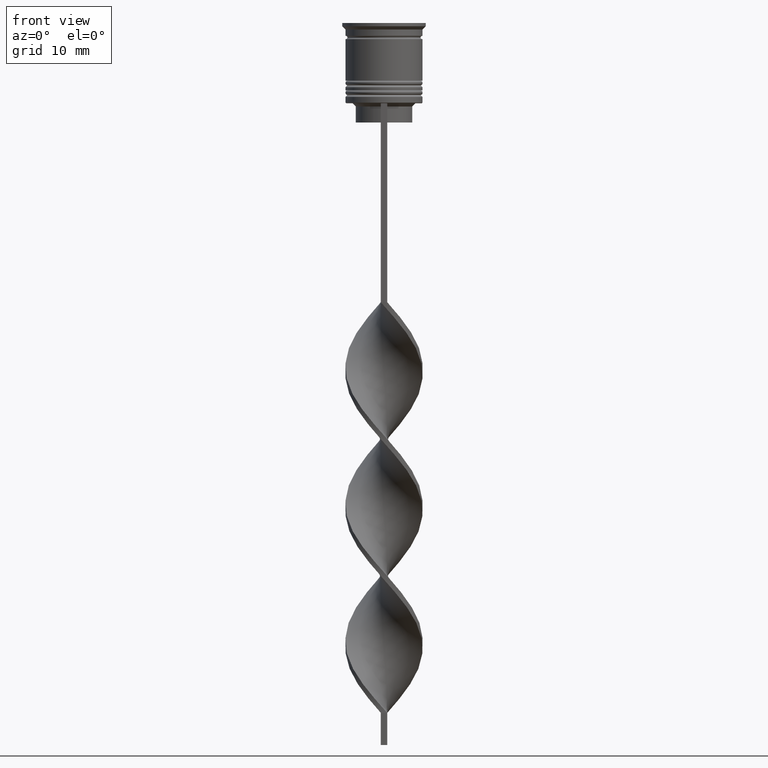
[diagram: clean part render]
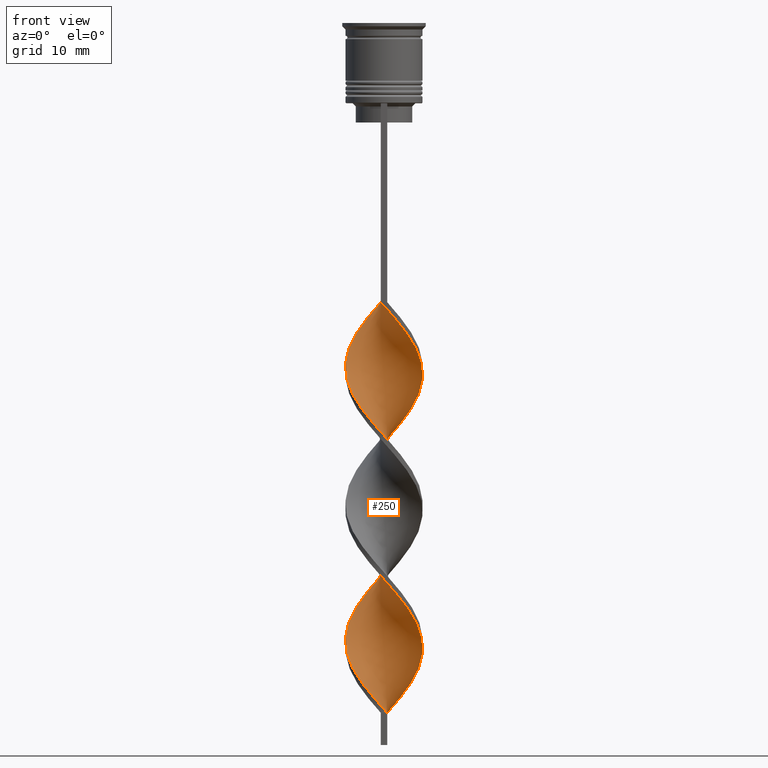
[diagram: same view with one face highlighted and labeled with its STEP entity id]
A machine part, front view. The second image highlights one B-rep face of the part: STEP entity #250.
In plain terms, the highlighted face is a freeform B-spline surface patch.
Its self-contained STEP definition (entity closure, byte-faithful):
#1 = CARTESIAN_POINT ( 'NONE',  ( -1.228531899333566990, -5.939289008388869640, -85.34615384615383959 ) ) ;
#21 = CARTESIAN_POINT ( 'NONE',  ( 3.604480575359223060, 4.822625818147002086, -81.24358974358973740 ) ) ;
#24 = CARTESIAN_POINT ( 'NONE',  ( -3.604480575359222172, -4.822625818147002974, -59.91025641025640880 ) ) ;
#41 = CARTESIAN_POINT ( 'NONE',  ( -0.2285318993335660742, -6.060710991611129472, -64.01282051282051100 ) ) ;
#42 = CARTESIAN_POINT ( 'NONE',  ( 0.2285318993335633819, -6.060710991611130360, -44.32051282051282470 ) ) ;
#57 = CARTESIAN_POINT ( 'NONE',  ( 1.672314254691080748, 5.829906481789052464, -83.70512820512820440 ) ) ;
#58 = CARTESIAN_POINT ( 'NONE',  ( -2.614197889543184328, -5.472697136436196708, -83.70512820512820440 ) ) ;
#74 = CARTESIAN_POINT ( 'NONE',  ( 5.747901747727230060, 1.935476698729086786, -77.14102564102563520 ) ) ;
#76 = CARTESIAN_POINT ( 'NONE',  ( -1.921364894438377657, -5.705993072412531397, -84.52564102564103621 ) ) ;
#93 = CARTESIAN_POINT ( 'NONE',  ( -0.4999999999999997780, 6.000000000000000000, -86.16666666666667140 ) ) ;
#103 = CARTESIAN_POINT ( 'NONE',  ( -5.787399899633756561, 1.660121200912507922, -94.37179487179486159 ) ) ;
#114 = CARTESIAN_POINT ( 'NONE',  ( 4.858046446425394294, 3.630954320453863016, -59.08974358974358410 ) ) ;
#132 = CARTESIAN_POINT ( 'NONE',  ( 3.018907784180934417, -5.260288998093235691, -90.26923076923077360 ) ) ;
#138 = CARTESIAN_POINT ( 'NONE',  ( -1.228531899333562993, 5.939289008388869640, -86.98717948717948900 ) ) ;
#149 = CARTESIAN_POINT ( 'NONE',  ( 0.5000000000000005551, 6.000000000000000000, -107.5000000000000000 ) ) ;
#152 = CARTESIAN_POINT ( 'NONE',  ( -1.921364894438372328, 5.705993072412534062, -87.80769230769230660 ) ) ;
#162 = CARTESIAN_POINT ( 'NONE',  ( 5.221935568727516852, 2.996896547440106140, -100.9358974358974308 ) ) ;
#165 = CARTESIAN_POINT ( 'NONE',  ( 5.895984904460662257, -1.219574518580966105, -53.34615384615383959 ) ) ;
#183 = CARTESIAN_POINT ( 'NONE',  ( 5.585824691029637634, -2.362838774426352373, -72.21794871794871540 ) ) ;
#185 = CARTESIAN_POINT ( 'NONE',  ( 1.921364894438374549, 5.705993072412533174, -63.19230769230768630 ) ) ;
#187 = CARTESIAN_POINT ( 'NONE',  ( -5.747901747727229171, -1.935476698729088785, -55.80769230769230660 ) ) ;
#201 = CARTESIAN_POINT ( 'NONE',  ( 5.432795012591220107, -2.595137443597922200, -94.37179487179486159 ) ) ;
#204 = ORIENTED_EDGE ( 'NONE', *, *, #1368, .F. ) ;
#206 = CARTESIAN_POINT ( 'NONE',  ( 4.858046446425394294, 3.630954320453863016, -101.7564102564102484 ) ) ;
#223 = CARTESIAN_POINT ( 'NONE',  ( 2.614197889543183884, 5.472697136436196708, -105.0384615384615330 ) ) ;
#224 = CARTESIAN_POINT ( 'NONE',  ( 3.847936200635249548, -4.688051999358554767, -68.93589743589743080 ) ) ;
#238 = VERTEX_POINT ( 'NONE', #1221 ) ;
#239 = CARTESIAN_POINT ( 'NONE',  ( 3.018907784180934861, -5.260288998093235691, -90.26923076923075939 ) ) ;
#242 = CARTESIAN_POINT ( 'NONE',  ( -0.2285318993335660742, -6.060710991611130360, -106.6794871794871824 ) ) ;
#250 = ADVANCED_FACE ( 'NONE', ( #730 ), #2122, .T. ) ;
#261 = CARTESIAN_POINT ( 'NONE',  ( -4.858046446425393405, 3.630954320453865680, -49.24358974358973740 ) ) ;
#277 = CARTESIAN_POINT ( 'NONE',  ( -5.117688277455211932, 3.254798188466756947, -72.21794871794871540 ) ) ;
#293 = CARTESIAN_POINT ( 'NONE',  ( -5.221935568727515964, 2.996896547440107916, -92.73076923076922640 ) ) ;
#307 = ORIENTED_EDGE ( 'NONE', *, *, #1296, .T. ) ;
#316 = CARTESIAN_POINT ( 'NONE',  ( 5.117688277455216372, 3.254798188466750730, -78.78205128205127039 ) ) ;
#331 = CARTESIAN_POINT ( 'NONE',  ( 6.016521584715985860, -0.2268656444829146579, -74.67948717948718240 ) ) ;
#332 = CARTESIAN_POINT ( 'NONE',  ( 2.345611019436006028, -5.545097739941144077, -46.78205128205127750 ) ) ;
#345 = CARTESIAN_POINT ( 'NONE',  ( -1.228531899333563215, 5.939289008388869640, -86.98717948717948900 ) ) ;
#346 = CARTESIAN_POINT ( 'NONE',  ( 5.117688277455213708, -3.254798188466753839, -50.88461538461537970 ) ) ;
#366 = CARTESIAN_POINT ( 'NONE',  ( 5.221935568727515964, -2.996896547440107916, -71.39743589743588359 ) ) ;
#368 = CARTESIAN_POINT ( 'NONE',  ( -5.117688277455211932, 3.254798188466756503, -72.21794871794871540 ) ) ;
#376 = CARTESIAN_POINT ( 'NONE',  ( -5.221935568727515964, 2.996896547440107916, -92.73076923076922640 ) ) ;
#387 = CARTESIAN_POINT ( 'NONE',  ( -5.432795012591220107, 2.595137443597922644, -73.03846153846153300 ) ) ;
#391 = CARTESIAN_POINT ( 'NONE',  ( 3.604480575359220396, -4.822625818147004750, -48.42307692307691269 ) ) ;
#394 = CARTESIAN_POINT ( 'NONE',  ( -5.432795012591221884, -2.595137443597919980, -99.29487179487178139 ) ) ;
#400 = CARTESIAN_POINT ( 'NONE',  ( 0.5000000000000005551, 6.000000000000000000, -107.5000000000000000 ) ) ;
#403 = CARTESIAN_POINT ( 'NONE',  ( 1.228531899333565880, 5.939289008388869640, -64.01282051282051100 ) ) ;
#413 = CARTESIAN_POINT ( 'NONE',  ( 0.5000000000000000000, 2.000000000000000000, -107.5000000000000000 ) ) ;
#439 = CARTESIAN_POINT ( 'NONE',  ( -5.585824691029639411, 2.362838774426349264, -50.88461538461537970 ) ) ;
#440 = CARTESIAN_POINT ( 'NONE',  ( -3.231067045089215384, 5.080374567897375293, -89.44871794871794179 ) ) ;
#452 = CARTESIAN_POINT ( 'NONE',  ( 4.352991323530322809, 4.159503159906207337, -102.5769230769230660 ) ) ;
#454 = CARTESIAN_POINT ( 'NONE',  ( 3.231067045089216716, 5.080374567897374405, -61.55128205128204399 ) ) ;
#474 = CARTESIAN_POINT ( 'NONE',  ( 4.653870821996360263, -3.819880413333763158, -92.73076923076922640 ) ) ;
#476 = CARTESIAN_POINT ( 'NONE',  ( -3.231067045089215384, 5.080374567897375293, -46.78205128205127750 ) ) ;
#495 = CARTESIAN_POINT ( 'NONE',  ( -5.895984904460662257, 1.219574518580968325, -74.67948717948718240 ) ) ;
#498 = CARTESIAN_POINT ( 'NONE',  ( 3.231067045089215384, -5.080374567897375293, -68.11538461538459899 ) ) ;
#512 = CARTESIAN_POINT ( 'NONE',  ( -4.190053366537505042, 4.384962638200773810, -70.57692307692306599 ) ) ;
#528 = CARTESIAN_POINT ( 'NONE',  ( 5.221935568727515964, -2.996896547440107916, -71.39743589743588359 ) ) ;
#531 = CARTESIAN_POINT ( 'NONE',  ( -3.847936200635249993, 4.688051999358553878, -47.60256410256408799 ) ) ;
#553 = CARTESIAN_POINT ( 'NONE',  ( -1.921364894438377657, -5.705993072412531397, -84.52564102564103621 ) ) ;
#571 = CARTESIAN_POINT ( 'NONE',  ( 1.228531899333561661, -5.939289008388869640, -65.65384615384614619 ) ) ;
#588 = CARTESIAN_POINT ( 'NONE',  ( 5.895984904460663145, 1.219574518580960998, -76.32051282051281760 ) ) ;
#608 = CARTESIAN_POINT ( 'NONE',  ( -4.858046446425393405, 3.630954320453865680, -91.91025641025643722 ) ) ;
#609 = CARTESIAN_POINT ( 'NONE',  ( -5.585824691029640299, -2.362838774426345712, -78.78205128205127039 ) ) ;
#621 = CARTESIAN_POINT ( 'NONE',  ( -5.787399899633756561, 1.660121200912507922, -94.37179487179486159 ) ) ;
#622 = CARTESIAN_POINT ( 'NONE',  ( 4.653870821996360263, -3.819880413333763158, -50.06410256410256210 ) ) ;
#632 =( BOUNDED_CURVE ( )  B_SPLINE_CURVE ( 2, ( #3202, #1258, #2153, #981, #476, #2375, #1314, #3484, #2096, #439, #731, #715, #2133, #1584, #2948, #187, #2427, #771, #1552, #2116, #3237, #1040, #748, #2664, #2991, #3502, #1861, #1843, #2388, #2701, #498, #224, #1332, #2447, #528, #183, #2206, #767, #1640, #3594, #1093, #3312, #1934, #1019, #1386, #1697, #21, #2804, #1990, #2390, #983, #1813, #1209, #138, #152, #2326, #440, #2631, #914, #643, #376, #2601, #103, #683, #3433, #2047, #1782, #2886, #394, #2081, #2617, #3453, #3171, #1797, #2901, #1586, #1333, #242, #1356 ),
 .UNSPECIFIED., .F., .T. ) 
 B_SPLINE_CURVE_WITH_KNOTS ( ( 3, 2, 2, 2, 2, 2, 2, 2, 2, 2, 2, 2, 2, 2, 2, 2, 2, 2, 2, 2, 2, 2, 2, 2, 2, 2, 2, 2, 2, 2, 2, 2, 2, 2, 2, 2, 2, 2, 2, 3 ),
 ( 0.000000000000000000, 0.01923076923076923184, 0.03846153846153846367, 0.05769230769230768857, 0.07692307692307692735, 0.09615384615384615918, 0.1153846153846153771, 0.1346153846153846090, 0.1538461538461538547, 0.1730769230769230449, 0.1923076923076923184, 0.2115384615384615363, 0.2307692307692307543, 0.2500000000000000000, 0.2692307692307692180, 0.2884615384615384359, 0.3076923076923077094, 0.3269230769230769273, 0.3461538461538460898, 0.3653846153846153633, 0.3846153846153846367, 0.4038461538461539102, 0.4230769230769230727, 0.4423076923076922906, 0.4615384615384615086, 0.4807692307692307820, 0.5000000000000000000, 0.5192307692307692735, 0.5384615384615384359, 0.5576923076923077094, 0.5769230769230768718, 0.5961538461538461453, 0.6153846153846154188, 0.6346153846153845812, 0.6538461538461538547, 0.6730769230769230171, 0.6923076923076921796, 0.7115384615384615641, 0.7307692307692307265, 0.7500000000000000000 ),
 .UNSPECIFIED. ) 
 CURVE ( )  GEOMETRIC_REPRESENTATION_ITEM ( )  RATIONAL_B_SPLINE_CURVE ( ( 1.000000000000000000, 0.9927088740980539727, 1.000000000000000000, 0.9927088740980539727, 1.000000000000000000, 0.9927088740980539727, 1.000000000000000000, 0.9927088740980539727, 1.000000000000000000, 0.9927088740980539727, 1.000000000000000000, 0.9927088740980539727, 1.000000000000000000, 0.9927088740980539727, 1.000000000000000000, 0.9927088740980539727, 1.000000000000000000, 0.9927088740980539727, 1.000000000000000000, 0.9927088740980539727, 1.000000000000000000, 0.9927088740980539727, 1.000000000000000000, 0.9927088740980539727, 1.000000000000000000, 0.9927088740980539727, 1.000000000000000000, 0.9927088740980539727, 1.000000000000000000, 0.9927088740980539727, 1.000000000000000000, 0.9927088740980539727, 1.000000000000000000, 0.9927088740980539727, 1.000000000000000000, 0.9927088740980539727, 1.000000000000000000, 0.9927088740980539727, 1.000000000000000000, 0.9927088740980539727, 1.000000000000000000, 0.9927088740980539727, 1.000000000000000000, 0.9927088740980539727, 1.000000000000000000, 0.9927088740980539727, 1.000000000000000000, 0.9927088740980539727, 1.000000000000000000, 0.9927088740980539727, 1.000000000000000000, 0.9927088740980539727, 1.000000000000000000, 0.9927088740980539727, 1.000000000000000000, 0.9927088740980539727, 1.000000000000000000, 0.9927088740980539727, 1.000000000000000000, 0.9927088740980539727, 1.000000000000000000, 0.9927088740980539727, 1.000000000000000000, 0.9927088740980539727, 1.000000000000000000, 0.9927088740980539727, 1.000000000000000000, 0.9927088740980539727, 1.000000000000000000, 0.9927088740980539727, 1.000000000000000000, 0.9927088740980539727, 1.000000000000000000, 0.9927088740980539727, 1.000000000000000000, 0.9927088740980539727, 1.000000000000000000, 0.9927088740980539727, 1.000000000000000000 ) ) 
 REPRESENTATION_ITEM ( '' )  );
#635 = CARTESIAN_POINT ( 'NONE',  ( 6.044068061194097119, 0.5036723384328400943, -75.49999999999998579 ) ) ;
#636 = CARTESIAN_POINT ( 'NONE',  ( -4.190053366537505042, 4.384962638200774698, -70.57692307692306599 ) ) ;
#643 = CARTESIAN_POINT ( 'NONE',  ( -4.858046446425393405, 3.630954320453865680, -91.91025641025643722 ) ) ;
#651 = EDGE_CURVE ( 'NONE', #1066, #238, #2273, .T. ) ;
#660 = CARTESIAN_POINT ( 'NONE',  ( 2.614197889543183884, 5.472697136436196708, -62.37179487179486870 ) ) ;
#664 = CARTESIAN_POINT ( 'NONE',  ( -0.9504230770123187622, 5.945308736700090968, -66.47435897435896379 ) ) ;
#678 = CARTESIAN_POINT ( 'NONE',  ( 5.221935568727516852, 2.996896547440106140, -58.26923076923076650 ) ) ;
#683 = CARTESIAN_POINT ( 'NONE',  ( -5.988975108237873712, 0.9574036273986648027, -95.19230769230769340 ) ) ;
#694 = CARTESIAN_POINT ( 'NONE',  ( 6.044068061194097119, -0.5036723384328415376, -96.83333333333332860 ) ) ;
#696 = CARTESIAN_POINT ( 'NONE',  ( 3.847936200635250437, 4.688051999358552990, -60.73076923076922640 ) ) ;
#712 = ORIENTED_EDGE ( 'NONE', *, *, #651, .F. ) ;
#714 = CARTESIAN_POINT ( 'NONE',  ( 3.018907784180934861, -5.260288998093235691, -47.60256410256408799 ) ) ;
#715 = CARTESIAN_POINT ( 'NONE',  ( -5.988975108237873712, 0.9574036273986648027, -52.52564102564102910 ) ) ;
#730 = FACE_OUTER_BOUND ( 'NONE', #3565, .T. ) ;
#731 = CARTESIAN_POINT ( 'NONE',  ( -5.787399899633756561, 1.660121200912507922, -51.70512820512820440 ) ) ;
#747 = CARTESIAN_POINT ( 'NONE',  ( -3.231067045089219825, -5.080374567897373517, -82.88461538461537259 ) ) ;
#748 = CARTESIAN_POINT ( 'NONE',  ( -2.345611019436007361, -5.545097739941143189, -61.55128205128204399 ) ) ;
#767 = CARTESIAN_POINT ( 'NONE',  ( 5.988975108237873712, -0.9574036273986642476, -73.85897435897436480 ) ) ;
#769 = CARTESIAN_POINT ( 'NONE',  ( 1.672314254691077862, -5.829906481789053352, -88.62820512820513841 ) ) ;
#771 = CARTESIAN_POINT ( 'NONE',  ( -5.117688277455213708, -3.254798188466752951, -57.44871794871794890 ) ) ;
#789 = CARTESIAN_POINT ( 'NONE',  ( 1.921364894438374549, 5.705993072412533174, -105.8589743589743506 ) ) ;
#806 = CARTESIAN_POINT ( 'NONE',  ( -3.604480575359219507, 4.822625818147005639, -69.75641025641024839 ) ) ;
#823 = CARTESIAN_POINT ( 'NONE',  ( -6.044068061194097119, -0.5036723384328408715, -54.16666666666665719 ) ) ;
#845 = CARTESIAN_POINT ( 'NONE',  ( 2.614197889543179887, -5.472697136436198484, -67.29487179487178139 ) ) ;
#862 = CARTESIAN_POINT ( 'NONE',  ( 3.604480575359223060, 4.822625818147002086, -81.24358974358973740 ) ) ;
#874 = CARTESIAN_POINT ( 'NONE',  ( -4.352991323530321033, 4.159503159906209113, -91.08974358974359120 ) ) ;
#892 = CARTESIAN_POINT ( 'NONE',  ( 3.847936200635249548, -4.688051999358554767, -68.93589743589743080 ) ) ;
#895 = CARTESIAN_POINT ( 'NONE',  ( -3.604480575359219507, 4.822625818147005639, -69.75641025641024839 ) ) ;
#907 = CARTESIAN_POINT ( 'NONE',  ( 5.787399899633756561, -1.660121200912508366, -73.03846153846153300 ) ) ;
#908 = CARTESIAN_POINT ( 'NONE',  ( -0.4999999999999997780, -6.000000000000000000, -86.16666666666667140 ) ) ;
#914 = CARTESIAN_POINT ( 'NONE',  ( -4.352991323530321033, 4.159503159906209113, -91.08974358974359120 ) ) ;
#926 = CARTESIAN_POINT ( 'NONE',  ( -5.221935568727517740, -2.996896547440105252, -79.60256410256410220 ) ) ;
#948 = CARTESIAN_POINT ( 'NONE',  ( 0.5000000000000005551, 6.000000000000000000, -64.83333333333332860 ) ) ;
#981 = CARTESIAN_POINT ( 'NONE',  ( -2.614197889543182107, 5.472697136436197596, -45.96153846153845990 ) ) ;
#983 = CARTESIAN_POINT ( 'NONE',  ( 0.9504230770123263117, 5.945308736700090968, -84.52564102564103621 ) ) ;
#1017 = CARTESIAN_POINT ( 'NONE',  ( 3.847936200635250881, 4.688051999358552990, -103.3974358974358836 ) ) ;
#1019 = CARTESIAN_POINT ( 'NONE',  ( 5.117688277455216372, 3.254798188466750286, -78.78205128205127039 ) ) ;
#1021 = CARTESIAN_POINT ( 'NONE',  ( 4.653870821996360263, -3.819880413333763158, -50.06410256410256210 ) ) ;
#1039 = CARTESIAN_POINT ( 'NONE',  ( -5.747901747727229171, 1.935476698729089007, -73.85897435897436480 ) ) ;
#1040 = CARTESIAN_POINT ( 'NONE',  ( -3.018907784180935305, -5.260288998093234802, -60.73076923076922640 ) ) ;
#1060 = CARTESIAN_POINT ( 'NONE',  ( 3.604480575359220396, -4.822625818147004750, -91.08974358974359120 ) ) ;
#1066 = VERTEX_POINT ( 'NONE', #1462 ) ;
#1079 = CARTESIAN_POINT ( 'NONE',  ( -1.228531899333563215, 5.939289008388869640, -44.32051282051282470 ) ) ;
#1093 = CARTESIAN_POINT ( 'NONE',  ( 5.895984904460663145, 1.219574518580960998, -76.32051282051281760 ) ) ;
#1095 = CARTESIAN_POINT ( 'NONE',  ( -5.221935568727515964, 2.996896547440107916, -50.06410256410256210 ) ) ;
#1115 = CARTESIAN_POINT ( 'NONE',  ( -2.345611019436006028, 5.545097739941144077, -68.11538461538459899 ) ) ;
#1116 = DIRECTION ( 'NONE',  ( 0.000000000000000000, 1.000000000000000000, 0.000000000000000000 ) ) ;
#1136 = CARTESIAN_POINT ( 'NONE',  ( -2.345611019436007361, -5.545097739941143189, -104.2179487179487012 ) ) ;
#1152 = CARTESIAN_POINT ( 'NONE',  ( -5.585824691029640299, 2.362838774426349264, -93.55128205128204399 ) ) ;
#1153 = CARTESIAN_POINT ( 'NONE',  ( 6.044068061194097119, -0.5036723384328415376, -54.16666666666666430 ) ) ;
#1165 = CARTESIAN_POINT ( 'NONE',  ( -5.432795012591221884, -2.595137443597919980, -99.29487179487178139 ) ) ;
#1166 = CARTESIAN_POINT ( 'NONE',  ( -5.747901747727229171, 1.935476698729089229, -73.85897435897436480 ) ) ;
#1185 = CARTESIAN_POINT ( 'NONE',  ( -4.190053366537507706, -4.384962638200770257, -59.08974358974359120 ) ) ;
#1186 = CARTESIAN_POINT ( 'NONE',  ( -0.2285318993335620774, 6.060710991611130360, -65.65384615384614619 ) ) ;
#1209 = CARTESIAN_POINT ( 'NONE',  ( -0.4999999999999997780, 6.000000000000000000, -86.16666666666667140 ) ) ;
#1218 = CARTESIAN_POINT ( 'NONE',  ( 4.352991323530322809, 4.159503159906207337, -59.91025641025640880 ) ) ;
#1221 = CARTESIAN_POINT ( 'NONE',  ( 0.4999999999999990563, -6.000000000000000000, -107.5000000000000000 ) ) ;
#1258 = CARTESIAN_POINT ( 'NONE',  ( -1.228531899333562993, 5.939289008388869640, -44.32051282051282470 ) ) ;
#1273 = CARTESIAN_POINT ( 'NONE',  ( 6.016521584715985860, 0.2268656444829105501, -54.98717948717948190 ) ) ;
#1296 = EDGE_CURVE ( 'NONE', #3313, #3364, #1938, .T. ) ;
#1309 = CARTESIAN_POINT ( 'NONE',  ( 1.228531899333565880, 5.939289008388869640, -106.6794871794871824 ) ) ;
#1313 = CARTESIAN_POINT ( 'NONE',  ( -5.585824691029640299, -2.362838774426346156, -78.78205128205127039 ) ) ;
#1314 = CARTESIAN_POINT ( 'NONE',  ( -4.352991323530321033, 4.159503159906209113, -48.42307692307691269 ) ) ;
#1331 = CARTESIAN_POINT ( 'NONE',  ( -5.221935568727517740, -2.996896547440105252, -79.60256410256410220 ) ) ;
#1332 = CARTESIAN_POINT ( 'NONE',  ( 4.352991323530320145, -4.159503159906210001, -69.75641025641024839 ) ) ;
#1333 = CARTESIAN_POINT ( 'NONE',  ( -0.9504230770123229810, -5.945308736700090968, -105.8589743589743506 ) ) ;
#1352 = CARTESIAN_POINT ( 'NONE',  ( -6.044068061194097119, 0.5036723384328423148, -75.49999999999998579 ) ) ;
#1356 = CARTESIAN_POINT ( 'NONE',  ( 0.4999999999999990563, -6.000000000000000000, -107.5000000000000000 ) ) ;
#1368 = EDGE_CURVE ( 'NONE', #3313, #1066, #3231, .T. ) ;
#1373 = CARTESIAN_POINT ( 'NONE',  ( -5.585824691029640299, 2.362838774426349264, -50.88461538461538680 ) ) ;
#1386 = CARTESIAN_POINT ( 'NONE',  ( 4.653870821996362039, 3.819880413333761826, -79.60256410256410220 ) ) ;
#1388 = CARTESIAN_POINT ( 'NONE',  ( 4.190053366537506818, -4.384962638200772922, -91.91025641025643722 ) ) ;
#1408 = CARTESIAN_POINT ( 'NONE',  ( 5.432795012591221884, 2.595137443597920868, -77.96153846153845279 ) ) ;
#1428 = CARTESIAN_POINT ( 'NONE',  ( 0.4999999999999990563, -6.000000000000000000, -107.5000000000000000 ) ) ;
#1442 = CARTESIAN_POINT ( 'NONE',  ( -2.345611019436007361, -5.545097739941143189, -61.55128205128204399 ) ) ;
#1443 = CARTESIAN_POINT ( 'NONE',  ( -6.044068061194097119, 0.5036723384328423148, -75.50000000000000000 ) ) ;
#1455 = CARTESIAN_POINT ( 'NONE',  ( 3.231067045089215384, -5.080374567897375293, -68.11538461538459899 ) ) ;
#1456 = CARTESIAN_POINT ( 'NONE',  ( -3.847936200635251325, -4.688051999358552990, -82.06410256410255499 ) ) ;
#1462 = CARTESIAN_POINT ( 'NONE',  ( 0.5000000000000005551, 6.000000000000000000, -107.5000000000000000 ) ) ;
#1480 = CARTESIAN_POINT ( 'NONE',  ( 4.653870821996362039, 3.819880413333761826, -79.60256410256410220 ) ) ;
#1482 = CARTESIAN_POINT ( 'NONE',  ( -4.858046446425396070, -3.630954320453860351, -80.42307692307691980 ) ) ;
#1491 = CARTESIAN_POINT ( 'NONE',  ( 0.4999999999999990563, -6.000000000000000000, -107.5000000000000000 ) ) ;
#1498 = CARTESIAN_POINT ( 'NONE',  ( 1.672314254691077640, -5.829906481789053352, -45.96153846153845990 ) ) ;
#1500 = CARTESIAN_POINT ( 'NONE',  ( 5.787399899633756561, 1.660121200912505479, -56.62820512820513130 ) ) ;
#1512 = CARTESIAN_POINT ( 'NONE',  ( 4.190053366537506818, -4.384962638200773810, -91.91025641025643722 ) ) ;
#1516 = CARTESIAN_POINT ( 'NONE',  ( 0.9504230770123207606, -5.945308736700090968, -45.14102564102563520 ) ) ;
#1535 = CARTESIAN_POINT ( 'NONE',  ( 5.747901747727229171, -1.935476698729089451, -95.19230769230769340 ) ) ;
#1551 = CARTESIAN_POINT ( 'NONE',  ( 5.747901747727229171, -1.935476698729089451, -52.52564102564103621 ) ) ;
#1552 = CARTESIAN_POINT ( 'NONE',  ( -4.653870821996361151, -3.819880413333762714, -58.26923076923076650 ) ) ;
#1563 = CARTESIAN_POINT ( 'NONE',  ( 2.614197889543183884, 5.472697136436196708, -105.0384615384615188 ) ) ;
#1566 = CARTESIAN_POINT ( 'NONE',  ( 6.044068061194097119, -0.5036723384328415376, -54.16666666666665719 ) ) ;
#1583 = CARTESIAN_POINT ( 'NONE',  ( 5.117688277455213708, -3.254798188466753839, -93.55128205128204399 ) ) ;
#1584 = CARTESIAN_POINT ( 'NONE',  ( -6.044068061194097119, -0.5036723384328409825, -54.16666666666666430 ) ) ;
#1586 = CARTESIAN_POINT ( 'NONE',  ( -1.672314254691080082, -5.829906481789052464, -105.0384615384615188 ) ) ;
#1602 = CARTESIAN_POINT ( 'NONE',  ( 5.895984904460662257, -1.219574518580966105, -96.01282051282051100 ) ) ;
#1620 = CARTESIAN_POINT ( 'NONE',  ( -5.432795012591220107, 2.595137443597922644, -73.03846153846153300 ) ) ;
#1640 = CARTESIAN_POINT ( 'NONE',  ( 6.016521584715985860, -0.2268656444829146579, -74.67948717948718240 ) ) ;
#1641 = CARTESIAN_POINT ( 'NONE',  ( -4.352991323530321033, 4.159503159906209113, -48.42307692307691269 ) ) ;
#1661 = CARTESIAN_POINT ( 'NONE',  ( -4.352991323530323697, -4.159503159906206449, -81.24358974358973740 ) ) ;
#1680 = CARTESIAN_POINT ( 'NONE',  ( 0.9504230770123263117, 5.945308736700090968, -84.52564102564103621 ) ) ;
#1697 = CARTESIAN_POINT ( 'NONE',  ( 4.190053366537511259, 4.384962638200769369, -80.42307692307691980 ) ) ;
#1700 = CARTESIAN_POINT ( 'NONE',  ( -0.9504230770123229810, -5.945308736700090968, -63.19230769230768630 ) ) ;
#1721 = CARTESIAN_POINT ( 'NONE',  ( -5.895984904460662257, -1.219574518580964106, -97.65384615384614619 ) ) ;
#1722 = CARTESIAN_POINT ( 'NONE',  ( -4.653870821996360263, 3.819880413333763158, -71.39743589743588359 ) ) ;
#1735 = CARTESIAN_POINT ( 'NONE',  ( -5.747901747727229171, -1.935476698729088563, -98.47435897435896379 ) ) ;
#1736 = CARTESIAN_POINT ( 'NONE',  ( 5.787399899633756561, 1.660121200912505479, -56.62820512820513130 ) ) ;
#1752 = CARTESIAN_POINT ( 'NONE',  ( -3.847936200635249993, 4.688051999358553878, -90.26923076923075939 ) ) ;
#1753 = CARTESIAN_POINT ( 'NONE',  ( 3.604480575359220396, -4.822625818147004750, -48.42307692307691269 ) ) ;
#1776 = CARTESIAN_POINT ( 'NONE',  ( 6.016521584715985860, 0.2268656444829105501, -54.98717948717948190 ) ) ;
#1782 = CARTESIAN_POINT ( 'NONE',  ( -5.895984904460662257, -1.219574518580964106, -97.65384615384614619 ) ) ;
#1791 = CARTESIAN_POINT ( 'NONE',  ( 3.231067045089216716, 5.080374567897374405, -61.55128205128204399 ) ) ;
#1797 = CARTESIAN_POINT ( 'NONE',  ( -3.018907784180935305, -5.260288998093234802, -103.3974358974358836 ) ) ;
#1805 = CARTESIAN_POINT ( 'NONE',  ( 5.988975108237873712, 0.9574036273986640255, -98.47435897435896379 ) ) ;
#1813 = CARTESIAN_POINT ( 'NONE',  ( 0.2285318993335668514, 6.060710991611130360, -85.34615384615385381 ) ) ;
#1827 = CARTESIAN_POINT ( 'NONE',  ( 5.432795012591220107, -2.595137443597922200, -51.70512820512820440 ) ) ;
#1842 = CARTESIAN_POINT ( 'NONE',  ( 4.858046446425394294, 3.630954320453863016, -59.08974358974359120 ) ) ;
#1843 = CARTESIAN_POINT ( 'NONE',  ( 1.228531899333561661, -5.939289008388869640, -65.65384615384614619 ) ) ;
#1858 = CARTESIAN_POINT ( 'NONE',  ( 6.016521584715985860, 0.2268656444829105501, -97.65384615384614619 ) ) ;
#1860 = CARTESIAN_POINT ( 'NONE',  ( -3.018907784180934417, 5.260288998093236579, -68.93589743589743080 ) ) ;
#1861 = CARTESIAN_POINT ( 'NONE',  ( 0.4999999999999990563, -6.000000000000000000, -64.83333333333332860 ) ) ;
#1874 = EDGE_CURVE ( 'NONE', #3364, #238, #632, .T. ) ;
#1883 = CARTESIAN_POINT ( 'NONE',  ( 4.352991323530322809, 4.159503159906207337, -102.5769230769230660 ) ) ;
#1901 = CARTESIAN_POINT ( 'NONE',  ( 1.228531899333566102, 5.939289008388869640, -106.6794871794871682 ) ) ;
#1916 = CARTESIAN_POINT ( 'NONE',  ( -2.614197889543182107, 5.472697136436197596, -45.96153846153845279 ) ) ;
#1934 = CARTESIAN_POINT ( 'NONE',  ( 5.432795012591221884, 2.595137443597920868, -77.96153846153845279 ) ) ;
#1936 = CARTESIAN_POINT ( 'NONE',  ( 5.432795012591220107, -2.595137443597922200, -94.37179487179486159 ) ) ;
#1938 = LINE ( 'NONE', #3083, #2394 ) ;
#1957 = CARTESIAN_POINT ( 'NONE',  ( -5.747901747727229171, -1.935476698729088563, -55.80769230769230660 ) ) ;
#1975 = CARTESIAN_POINT ( 'NONE',  ( -4.190053366537507706, -4.384962638200770257, -101.7564102564102484 ) ) ;
#1990 = CARTESIAN_POINT ( 'NONE',  ( 2.345611019436010469, 5.545097739941142301, -82.88461538461537259 ) ) ;
#1992 = CARTESIAN_POINT ( 'NONE',  ( 3.018907784180936194, 5.260288998093234802, -82.06410256410255499 ) ) ;
#1993 = CARTESIAN_POINT ( 'NONE',  ( 5.747901747727229171, -1.935476698729089451, -52.52564102564102910 ) ) ;
#2008 = CARTESIAN_POINT ( 'NONE',  ( 5.988975108237873712, -0.9574036273986643586, -73.85897435897436480 ) ) ;
#2025 = CARTESIAN_POINT ( 'NONE',  ( -6.016521584715985860, 0.2268656444829126040, -96.01282051282051100 ) ) ;
#2026 = CARTESIAN_POINT ( 'NONE',  ( 1.921364894438374549, 5.705993072412533174, -63.19230769230768630 ) ) ;
#2040 = CARTESIAN_POINT ( 'NONE',  ( 0.9504230770123207606, -5.945308736700090968, -87.80769230769230660 ) ) ;
#2047 = CARTESIAN_POINT ( 'NONE',  ( -6.044068061194097119, -0.5036723384328409825, -96.83333333333332860 ) ) ;
#2064 = CARTESIAN_POINT ( 'NONE',  ( -6.016521584715984972, -0.2268656444829071639, -76.32051282051281760 ) ) ;
#2077 = CARTESIAN_POINT ( 'NONE',  ( 3.604480575359220396, -4.822625818147004750, -91.08974358974359120 ) ) ;
#2079 = CARTESIAN_POINT ( 'NONE',  ( 5.585824691029640299, 2.362838774426348376, -57.44871794871794890 ) ) ;
#2081 = CARTESIAN_POINT ( 'NONE',  ( -5.117688277455213708, -3.254798188466752951, -100.1153846153846132 ) ) ;
#2094 = CARTESIAN_POINT ( 'NONE',  ( 0.2285318993335633819, -6.060710991611129472, -44.32051282051282470 ) ) ;
#2096 = CARTESIAN_POINT ( 'NONE',  ( -5.221935568727515964, 2.996896547440107916, -50.06410256410256210 ) ) ;
#2115 = CARTESIAN_POINT ( 'NONE',  ( 5.221935568727516852, 2.996896547440106140, -58.26923076923076650 ) ) ;
#2116 = CARTESIAN_POINT ( 'NONE',  ( -4.190053366537507706, -4.384962638200771146, -59.08974358974358410 ) ) ;
#2122 =( BOUNDED_SURFACE ( )  B_SPLINE_SURFACE ( 1, 2, ( 
 ( #3519, #2094, #1516, #3200, #2882, #714, #391, #2342, #1021, #2387, #1827, #1551, #165, #1566, #1273, #3499, #1500, #2079, #2115, #1842, #2947, #696, #454, #2677, #185, #2132, #3184, #3470, #664, #3169, #1115, #1860, #806, #512, #3536, #277, #1620, #1039, #495, #1352, #2192, #2446, #3557, #1313, #1331, #2499, #1661, #2771, #747, #3236, #553, #1, #2752, #2990, #2965, #769, #2152, #239, #1060, #1388, #474, #1583, #1936, #2733, #1602, #2175, #2718, #3258, #2698, #3282, #3578, #206, #1883, #2426, #2209, #223, #789, #1901, #2468 ),
 ( #3008, #1079, #3297, #1916, #3023, #531, #1641, #261, #1095, #1373, #2487, #3595, #3314, #823, #3047, #1957, #2540, #3338, #3129, #1185, #24, #2594, #1442, #2574, #1700, #41, #3082, #571, #2856, #845, #1455, #892, #2806, #2555, #366, #3410, #907, #2008, #331, #635, #588, #74, #1408, #316, #1480, #3100, #862, #1992, #3064, #57, #1680, #2787, #93, #345, #3371, #2824, #3115, #1752, #874, #608, #293, #1152, #621, #2302, #2025, #2265, #1721, #1735, #1165, #3390, #2285, #1975, #2227, #2522, #1136, #2249, #2839, #3356, #1428 ) ),
 .UNSPECIFIED., .F., .F., .F. ) 
 B_SPLINE_SURFACE_WITH_KNOTS ( ( 2, 2 ),
 ( 3, 2, 2, 2, 2, 2, 2, 2, 2, 2, 2, 2, 2, 2, 2, 2, 2, 2, 2, 2, 2, 2, 2, 2, 2, 2, 2, 2, 2, 2, 2, 2, 2, 2, 2, 2, 2, 2, 2, 3 ),
 ( 0.000000000000000000, 1.000000000000000000 ),
 ( 0.000000000000000000, 0.01923076923076923184, 0.03846153846153846367, 0.05769230769230769551, 0.07692307692307692735, 0.09615384615384615918, 0.1153846153846153910, 0.1346153846153846090, 0.1538461538461538547, 0.1730769230769230727, 0.1923076923076923184, 0.2115384615384615363, 0.2307692307692307820, 0.2500000000000000000, 0.2692307692307692180, 0.2884615384615384359, 0.3076923076923077094, 0.3269230769230769273, 0.3461538461538461453, 0.3653846153846153633, 0.3846153846153846367, 0.4038461538461538547, 0.4230769230769230727, 0.4423076923076922906, 0.4615384615384615641, 0.4807692307692307820, 0.5000000000000000000, 0.5192307692307692735, 0.5384615384615384359, 0.5576923076923077094, 0.5769230769230768718, 0.5961538461538461453, 0.6153846153846154188, 0.6346153846153845812, 0.6538461538461538547, 0.6730769230769231282, 0.6923076923076922906, 0.7115384615384615641, 0.7307692307692307265, 0.7500000000000000000 ),
 .UNSPECIFIED. ) 
 GEOMETRIC_REPRESENTATION_ITEM ( )  RATIONAL_B_SPLINE_SURFACE ( (
 ( 1.000000000000000000, 0.9927088740980539727, 1.000000000000000000, 0.9927088740980539727, 1.000000000000000000, 0.9927088740980539727, 1.000000000000000000, 0.9927088740980539727, 1.000000000000000000, 0.9927088740980539727, 1.000000000000000000, 0.9927088740980539727, 1.000000000000000000, 0.9927088740980539727, 1.000000000000000000, 0.9927088740980539727, 1.000000000000000000, 0.9927088740980539727, 1.000000000000000000, 0.9927088740980539727, 1.000000000000000000, 0.9927088740980539727, 1.000000000000000000, 0.9927088740980539727, 1.000000000000000000, 0.9927088740980539727, 1.000000000000000000, 0.9927088740980539727, 1.000000000000000000, 0.9927088740980539727, 1.000000000000000000, 0.9927088740980539727, 1.000000000000000000, 0.9927088740980539727, 1.000000000000000000, 0.9927088740980539727, 1.000000000000000000, 0.9927088740980539727, 1.000000000000000000, 0.9927088740980539727, 1.000000000000000000, 0.9927088740980539727, 1.000000000000000000, 0.9927088740980539727, 1.000000000000000000, 0.9927088740980539727, 1.000000000000000000, 0.9927088740980539727, 1.000000000000000000, 0.9927088740980539727, 1.000000000000000000, 0.9927088740980539727, 1.000000000000000000, 0.9927088740980539727, 1.000000000000000000, 0.9927088740980539727, 1.000000000000000000, 0.9927088740980539727, 1.000000000000000000, 0.9927088740980539727, 1.000000000000000000, 0.9927088740980539727, 1.000000000000000000, 0.9927088740980539727, 1.000000000000000000, 0.9927088740980539727, 1.000000000000000000, 0.9927088740980539727, 1.000000000000000000, 0.9927088740980539727, 1.000000000000000000, 0.9927088740980539727, 1.000000000000000000, 0.9927088740980539727, 1.000000000000000000, 0.9927088740980539727, 1.000000000000000000, 0.9927088740980539727, 1.000000000000000000),
 ( 1.000000000000000000, 0.9927088740980539727, 1.000000000000000000, 0.9927088740980539727, 1.000000000000000000, 0.9927088740980539727, 1.000000000000000000, 0.9927088740980539727, 1.000000000000000000, 0.9927088740980539727, 1.000000000000000000, 0.9927088740980539727, 1.000000000000000000, 0.9927088740980539727, 1.000000000000000000, 0.9927088740980539727, 1.000000000000000000, 0.9927088740980539727, 1.000000000000000000, 0.9927088740980539727, 1.000000000000000000, 0.9927088740980539727, 1.000000000000000000, 0.9927088740980539727, 1.000000000000000000, 0.9927088740980539727, 1.000000000000000000, 0.9927088740980539727, 1.000000000000000000, 0.9927088740980539727, 1.000000000000000000, 0.9927088740980539727, 1.000000000000000000, 0.9927088740980539727, 1.000000000000000000, 0.9927088740980539727, 1.000000000000000000, 0.9927088740980539727, 1.000000000000000000, 0.9927088740980539727, 1.000000000000000000, 0.9927088740980539727, 1.000000000000000000, 0.9927088740980539727, 1.000000000000000000, 0.9927088740980539727, 1.000000000000000000, 0.9927088740980539727, 1.000000000000000000, 0.9927088740980539727, 1.000000000000000000, 0.9927088740980539727, 1.000000000000000000, 0.9927088740980539727, 1.000000000000000000, 0.9927088740980539727, 1.000000000000000000, 0.9927088740980539727, 1.000000000000000000, 0.9927088740980539727, 1.000000000000000000, 0.9927088740980539727, 1.000000000000000000, 0.9927088740980539727, 1.000000000000000000, 0.9927088740980539727, 1.000000000000000000, 0.9927088740980539727, 1.000000000000000000, 0.9927088740980539727, 1.000000000000000000, 0.9927088740980539727, 1.000000000000000000, 0.9927088740980539727, 1.000000000000000000, 0.9927088740980539727, 1.000000000000000000, 0.9927088740980539727, 1.000000000000000000) ) ) 
 REPRESENTATION_ITEM ( '' )  SURFACE ( )  );
#2132 = CARTESIAN_POINT ( 'NONE',  ( 1.228531899333566102, 5.939289008388869640, -64.01282051282051100 ) ) ;
#2133 = CARTESIAN_POINT ( 'NONE',  ( -6.016521584715985860, 0.2268656444829126040, -53.34615384615383959 ) ) ;
#2152 = CARTESIAN_POINT ( 'NONE',  ( 2.345611019436006028, -5.545097739941144077, -89.44871794871794179 ) ) ;
#2153 = CARTESIAN_POINT ( 'NONE',  ( -1.921364894438372328, 5.705993072412534062, -45.14102564102563520 ) ) ;
#2175 = CARTESIAN_POINT ( 'NONE',  ( 6.044068061194097119, -0.5036723384328415376, -96.83333333333332860 ) ) ;
#2192 = CARTESIAN_POINT ( 'NONE',  ( -6.016521584715984972, -0.2268656444829071639, -76.32051282051281760 ) ) ;
#2206 = CARTESIAN_POINT ( 'NONE',  ( 5.787399899633756561, -1.660121200912508366, -73.03846153846153300 ) ) ;
#2209 = CARTESIAN_POINT ( 'NONE',  ( 3.231067045089216716, 5.080374567897374405, -104.2179487179487012 ) ) ;
#2227 = CARTESIAN_POINT ( 'NONE',  ( -3.604480575359222172, -4.822625818147002974, -102.5769230769230660 ) ) ;
#2249 = CARTESIAN_POINT ( 'NONE',  ( -1.672314254691080304, -5.829906481789052464, -105.0384615384615330 ) ) ;
#2265 = CARTESIAN_POINT ( 'NONE',  ( -6.044068061194097119, -0.5036723384328408715, -96.83333333333332860 ) ) ;
#2266 = CARTESIAN_POINT ( 'NONE',  ( -3.018907784180933973, 5.260288998093236579, -68.93589743589743080 ) ) ;
#2273 = B_SPLINE_CURVE_WITH_KNOTS ( 'NONE', 3,
 ( #400, #413, #2353, #1491 ),
 .UNSPECIFIED., .F., .F.,
 ( 4, 4 ),
 ( 0.000000000000000000, 1.000000000000000000 ),
 .UNSPECIFIED. ) ;
#2285 = CARTESIAN_POINT ( 'NONE',  ( -4.653870821996361151, -3.819880413333762714, -100.9358974358974308 ) ) ;
#2286 = CARTESIAN_POINT ( 'NONE',  ( -2.345611019436006028, 5.545097739941144077, -68.11538461538459899 ) ) ;
#2302 = CARTESIAN_POINT ( 'NONE',  ( -5.988975108237873712, 0.9574036273986648027, -95.19230769230769340 ) ) ;
#2304 = CARTESIAN_POINT ( 'NONE',  ( -1.228531899333566768, -5.939289008388869640, -85.34615384615385381 ) ) ;
#2319 = CARTESIAN_POINT ( 'NONE',  ( 5.988975108237873712, 0.9574036273986640255, -55.80769230769230660 ) ) ;
#2326 = CARTESIAN_POINT ( 'NONE',  ( -2.614197889543182107, 5.472697136436197596, -88.62820512820512420 ) ) ;
#2342 = CARTESIAN_POINT ( 'NONE',  ( 4.190053366537506818, -4.384962638200772922, -49.24358974358973740 ) ) ;
#2353 = CARTESIAN_POINT ( 'NONE',  ( 0.4999999999999995559, -2.000000000000000000, -107.5000000000000000 ) ) ;
#2375 = CARTESIAN_POINT ( 'NONE',  ( -3.847936200635249993, 4.688051999358553878, -47.60256410256409509 ) ) ;
#2387 = CARTESIAN_POINT ( 'NONE',  ( 5.117688277455213708, -3.254798188466753839, -50.88461538461538680 ) ) ;
#2388 = CARTESIAN_POINT ( 'NONE',  ( 1.921364894438370330, -5.705993072412534062, -66.47435897435896379 ) ) ;
#2390 = CARTESIAN_POINT ( 'NONE',  ( 1.672314254691080526, 5.829906481789052464, -83.70512820512820440 ) ) ;
#2394 = VECTOR ( 'NONE', #1116, 1000.000000000000000 ) ;
#2426 = CARTESIAN_POINT ( 'NONE',  ( 3.847936200635250437, 4.688051999358552990, -103.3974358974358694 ) ) ;
#2427 = CARTESIAN_POINT ( 'NONE',  ( -5.432795012591221884, -2.595137443597919980, -56.62820512820513130 ) ) ;
#2446 = CARTESIAN_POINT ( 'NONE',  ( -5.988975108237873712, -0.9574036273986618051, -77.14102564102563520 ) ) ;
#2447 = CARTESIAN_POINT ( 'NONE',  ( 4.858046446425391629, -3.630954320453867012, -70.57692307692306599 ) ) ;
#2468 = CARTESIAN_POINT ( 'NONE',  ( 0.5000000000000005551, 6.000000000000000000, -107.5000000000000000 ) ) ;
#2487 = CARTESIAN_POINT ( 'NONE',  ( -5.787399899633756561, 1.660121200912507922, -51.70512820512820440 ) ) ;
#2499 = CARTESIAN_POINT ( 'NONE',  ( -4.858046446425396070, -3.630954320453860351, -80.42307692307691980 ) ) ;
#2522 = CARTESIAN_POINT ( 'NONE',  ( -3.018907784180935749, -5.260288998093234802, -103.3974358974358694 ) ) ;
#2540 = CARTESIAN_POINT ( 'NONE',  ( -5.432795012591221884, -2.595137443597919980, -56.62820512820513130 ) ) ;
#2541 = CARTESIAN_POINT ( 'NONE',  ( -5.988975108237874601, -0.9574036273986618051, -77.14102564102563520 ) ) ;
#2555 = CARTESIAN_POINT ( 'NONE',  ( 4.858046446425391629, -3.630954320453867012, -70.57692307692306599 ) ) ;
#2556 = CARTESIAN_POINT ( 'NONE',  ( -3.231067045089219825, -5.080374567897373517, -82.88461538461537259 ) ) ;
#2574 = CARTESIAN_POINT ( 'NONE',  ( -1.672314254691080304, -5.829906481789052464, -62.37179487179486870 ) ) ;
#2594 = CARTESIAN_POINT ( 'NONE',  ( -3.018907784180935749, -5.260288998093234802, -60.73076923076922640 ) ) ;
#2595 = CARTESIAN_POINT ( 'NONE',  ( 0.2285318993335633819, -6.060710991611130360, -86.98717948717948900 ) ) ;
#2601 = CARTESIAN_POINT ( 'NONE',  ( -5.585824691029639411, 2.362838774426349264, -93.55128205128204399 ) ) ;
#2610 = CARTESIAN_POINT ( 'NONE',  ( 3.847936200635250881, 4.688051999358552990, -60.73076923076922640 ) ) ;
#2617 = CARTESIAN_POINT ( 'NONE',  ( -4.653870821996361151, -3.819880413333762714, -100.9358974358974308 ) ) ;
#2631 = CARTESIAN_POINT ( 'NONE',  ( -3.847936200635249993, 4.688051999358553878, -90.26923076923077360 ) ) ;
#2645 = CARTESIAN_POINT ( 'NONE',  ( 5.787399899633756561, 1.660121200912505479, -99.29487179487178139 ) ) ;
#2664 = CARTESIAN_POINT ( 'NONE',  ( -1.672314254691080082, -5.829906481789052464, -62.37179487179486870 ) ) ;
#2677 = CARTESIAN_POINT ( 'NONE',  ( 2.614197889543183884, 5.472697136436196708, -62.37179487179486870 ) ) ;
#2698 = CARTESIAN_POINT ( 'NONE',  ( 5.787399899633756561, 1.660121200912505479, -99.29487179487178139 ) ) ;
#2701 = CARTESIAN_POINT ( 'NONE',  ( 2.614197889543179887, -5.472697136436198484, -67.29487179487178139 ) ) ;
#2718 = CARTESIAN_POINT ( 'NONE',  ( 6.016521584715985860, 0.2268656444829105501, -97.65384615384614619 ) ) ;
#2733 = CARTESIAN_POINT ( 'NONE',  ( 5.747901747727229171, -1.935476698729089451, -95.19230769230769340 ) ) ;
#2752 = CARTESIAN_POINT ( 'NONE',  ( -0.4999999999999997780, -6.000000000000000000, -86.16666666666667140 ) ) ;
#2771 = CARTESIAN_POINT ( 'NONE',  ( -3.847936200635250881, -4.688051999358552990, -82.06410256410255499 ) ) ;
#2787 = CARTESIAN_POINT ( 'NONE',  ( 0.2285318993335668514, 6.060710991611129472, -85.34615384615383959 ) ) ;
#2804 = CARTESIAN_POINT ( 'NONE',  ( 3.018907784180935749, 5.260288998093234802, -82.06410256410255499 ) ) ;
#2806 = CARTESIAN_POINT ( 'NONE',  ( 4.352991323530320145, -4.159503159906210001, -69.75641025641024839 ) ) ;
#2824 = CARTESIAN_POINT ( 'NONE',  ( -2.614197889543182107, 5.472697136436197596, -88.62820512820513841 ) ) ;
#2825 = CARTESIAN_POINT ( 'NONE',  ( -4.352991323530323697, -4.159503159906206449, -81.24358974358973740 ) ) ;
#2832 = ORIENTED_EDGE ( 'NONE', *, *, #1874, .T. ) ;
#2839 = CARTESIAN_POINT ( 'NONE',  ( -0.9504230770123229810, -5.945308736700090968, -105.8589743589743506 ) ) ;
#2840 = CARTESIAN_POINT ( 'NONE',  ( -0.4999999999999997780, -6.000000000000000000, -43.50000000000000000 ) ) ;
#2856 = CARTESIAN_POINT ( 'NONE',  ( 1.921364894438370330, -5.705993072412534062, -66.47435897435896379 ) ) ;
#2857 = CARTESIAN_POINT ( 'NONE',  ( 5.585824691029639411, 2.362838774426348376, -57.44871794871794890 ) ) ;
#2880 = CARTESIAN_POINT ( 'NONE',  ( 4.190053366537506818, -4.384962638200773810, -49.24358974358974450 ) ) ;
#2882 = CARTESIAN_POINT ( 'NONE',  ( 2.345611019436006028, -5.545097739941144077, -46.78205128205127750 ) ) ;
#2886 = CARTESIAN_POINT ( 'NONE',  ( -5.747901747727229171, -1.935476698729088785, -98.47435897435896379 ) ) ;
#2896 = CARTESIAN_POINT ( 'NONE',  ( 3.018907784180934417, -5.260288998093235691, -47.60256410256409509 ) ) ;
#2901 = CARTESIAN_POINT ( 'NONE',  ( -2.345611019436007361, -5.545097739941143189, -104.2179487179487012 ) ) ;
#2911 = CARTESIAN_POINT ( 'NONE',  ( 4.858046446425394294, 3.630954320453863016, -101.7564102564102484 ) ) ;
#2930 = CARTESIAN_POINT ( 'NONE',  ( 5.585824691029639411, 2.362838774426348376, -100.1153846153846132 ) ) ;
#2944 = CARTESIAN_POINT ( 'NONE',  ( 2.345611019436006028, -5.545097739941144077, -89.44871794871794179 ) ) ;
#2947 = CARTESIAN_POINT ( 'NONE',  ( 4.352991323530322809, 4.159503159906207337, -59.91025641025640880 ) ) ;
#2948 = CARTESIAN_POINT ( 'NONE',  ( -5.895984904460662257, -1.219574518580964106, -54.98717948717948190 ) ) ;
#2961 = CARTESIAN_POINT ( 'NONE',  ( 1.921364894438374549, 5.705993072412533174, -105.8589743589743506 ) ) ;
#2965 = CARTESIAN_POINT ( 'NONE',  ( 0.9504230770123207606, -5.945308736700090968, -87.80769230769230660 ) ) ;
#2990 = CARTESIAN_POINT ( 'NONE',  ( 0.2285318993335633819, -6.060710991611129472, -86.98717948717948900 ) ) ;
#2991 = CARTESIAN_POINT ( 'NONE',  ( -0.9504230770123229810, -5.945308736700090968, -63.19230769230768630 ) ) ;
#3008 = CARTESIAN_POINT ( 'NONE',  ( -0.4999999999999997780, 6.000000000000000000, -43.50000000000000000 ) ) ;
#3023 = CARTESIAN_POINT ( 'NONE',  ( -3.231067045089215384, 5.080374567897375293, -46.78205128205127750 ) ) ;
#3047 = CARTESIAN_POINT ( 'NONE',  ( -5.895984904460662257, -1.219574518580964106, -54.98717948717948190 ) ) ;
#3064 = CARTESIAN_POINT ( 'NONE',  ( 2.345611019436010469, 5.545097739941142301, -82.88461538461537259 ) ) ;
#3082 = CARTESIAN_POINT ( 'NONE',  ( 0.4999999999999990563, -6.000000000000000000, -64.83333333333332860 ) ) ;
#3083 = CARTESIAN_POINT ( 'NONE',  ( -0.4999999999999997780, -6.000000000000000000, -43.50000000000000000 ) ) ;
#3100 = CARTESIAN_POINT ( 'NONE',  ( 4.190053366537511259, 4.384962638200768481, -80.42307692307691980 ) ) ;
#3104 = CARTESIAN_POINT ( 'NONE',  ( -5.895984904460662257, 1.219574518580968325, -74.67948717948718240 ) ) ;
#3115 = CARTESIAN_POINT ( 'NONE',  ( -3.231067045089215384, 5.080374567897375293, -89.44871794871794179 ) ) ;
#3129 = CARTESIAN_POINT ( 'NONE',  ( -4.653870821996361151, -3.819880413333762714, -58.26923076923076650 ) ) ;
#3130 = CARTESIAN_POINT ( 'NONE',  ( -1.672314254691075641, 5.829906481789053352, -67.29487179487178139 ) ) ;
#3148 = CARTESIAN_POINT ( 'NONE',  ( 1.672314254691077640, -5.829906481789053352, -88.62820512820512420 ) ) ;
#3166 = CARTESIAN_POINT ( 'NONE',  ( 5.895984904460662257, -1.219574518580966105, -53.34615384615383959 ) ) ;
#3169 = CARTESIAN_POINT ( 'NONE',  ( -1.672314254691075641, 5.829906481789053352, -67.29487179487178139 ) ) ;
#3171 = CARTESIAN_POINT ( 'NONE',  ( -3.604480575359222172, -4.822625818147002974, -102.5769230769230660 ) ) ;
#3180 = CARTESIAN_POINT ( 'NONE',  ( 5.117688277455213708, -3.254798188466753839, -93.55128205128204399 ) ) ;
#3184 = CARTESIAN_POINT ( 'NONE',  ( 0.5000000000000005551, 6.000000000000000000, -64.83333333333332860 ) ) ;
#3200 = CARTESIAN_POINT ( 'NONE',  ( 1.672314254691077862, -5.829906481789053352, -45.96153846153845279 ) ) ;
#3202 = CARTESIAN_POINT ( 'NONE',  ( -0.4999999999999997780, 6.000000000000000888, -43.50000000000000000 ) ) ;
#3230 = CARTESIAN_POINT ( 'NONE',  ( 4.653870821996360263, -3.819880413333763158, -92.73076923076922640 ) ) ;
#3231 =( BOUNDED_CURVE ( )  B_SPLINE_CURVE ( 2, ( #2840, #42, #3446, #1498, #332, #2896, #1753, #2880, #622, #346, #3392, #1993, #3166, #1153, #1776, #2319, #1736, #2857, #678, #114, #1218, #2610, #1791, #660, #2026, #403, #948, #1186, #3425, #3130, #2286, #2266, #895, #636, #1722, #368, #387, #1166, #3104, #1443, #2064, #2541, #3372, #609, #926, #1482, #2825, #1456, #2556, #58, #76, #2304, #908, #2595, #2040, #3148, #2944, #132, #2077, #1512, #3230, #3180, #201, #1535, #3517, #694, #1858, #1805, #2645, #2930, #162, #2911, #452, #1017, #3495, #1563, #2961, #1309, #149 ),
 .UNSPECIFIED., .F., .T. ) 
 B_SPLINE_CURVE_WITH_KNOTS ( ( 3, 2, 2, 2, 2, 2, 2, 2, 2, 2, 2, 2, 2, 2, 2, 2, 2, 2, 2, 2, 2, 2, 2, 2, 2, 2, 2, 2, 2, 2, 2, 2, 2, 2, 2, 2, 2, 2, 2, 3 ),
 ( 0.000000000000000000, 0.01923076923076923184, 0.03846153846153846367, 0.05769230769230768857, 0.07692307692307692735, 0.09615384615384615918, 0.1153846153846153771, 0.1346153846153846090, 0.1538461538461538547, 0.1730769230769230449, 0.1923076923076923184, 0.2115384615384615363, 0.2307692307692307543, 0.2500000000000000000, 0.2692307692307692180, 0.2884615384615384359, 0.3076923076923077094, 0.3269230769230769273, 0.3461538461538460898, 0.3653846153846153633, 0.3846153846153846367, 0.4038461538461539102, 0.4230769230769230727, 0.4423076923076922906, 0.4615384615384615086, 0.4807692307692307820, 0.5000000000000000000, 0.5192307692307692735, 0.5384615384615384359, 0.5576923076923077094, 0.5769230769230768718, 0.5961538461538461453, 0.6153846153846154188, 0.6346153846153845812, 0.6538461538461538547, 0.6730769230769230171, 0.6923076923076921796, 0.7115384615384615641, 0.7307692307692307265, 0.7500000000000000000 ),
 .UNSPECIFIED. ) 
 CURVE ( )  GEOMETRIC_REPRESENTATION_ITEM ( )  RATIONAL_B_SPLINE_CURVE ( ( 1.000000000000000000, 0.9927088740980539727, 1.000000000000000000, 0.9927088740980539727, 1.000000000000000000, 0.9927088740980539727, 1.000000000000000000, 0.9927088740980539727, 1.000000000000000000, 0.9927088740980539727, 1.000000000000000000, 0.9927088740980539727, 1.000000000000000000, 0.9927088740980539727, 1.000000000000000000, 0.9927088740980539727, 1.000000000000000000, 0.9927088740980539727, 1.000000000000000000, 0.9927088740980539727, 1.000000000000000000, 0.9927088740980539727, 1.000000000000000000, 0.9927088740980539727, 1.000000000000000000, 0.9927088740980539727, 1.000000000000000000, 0.9927088740980539727, 1.000000000000000000, 0.9927088740980539727, 1.000000000000000000, 0.9927088740980539727, 1.000000000000000000, 0.9927088740980539727, 1.000000000000000000, 0.9927088740980539727, 1.000000000000000000, 0.9927088740980539727, 1.000000000000000000, 0.9927088740980539727, 1.000000000000000000, 0.9927088740980539727, 1.000000000000000000, 0.9927088740980539727, 1.000000000000000000, 0.9927088740980539727, 1.000000000000000000, 0.9927088740980539727, 1.000000000000000000, 0.9927088740980539727, 1.000000000000000000, 0.9927088740980539727, 1.000000000000000000, 0.9927088740980539727, 1.000000000000000000, 0.9927088740980539727, 1.000000000000000000, 0.9927088740980539727, 1.000000000000000000, 0.9927088740980539727, 1.000000000000000000, 0.9927088740980539727, 1.000000000000000000, 0.9927088740980539727, 1.000000000000000000, 0.9927088740980539727, 1.000000000000000000, 0.9927088740980539727, 1.000000000000000000, 0.9927088740980539727, 1.000000000000000000, 0.9927088740980539727, 1.000000000000000000, 0.9927088740980539727, 1.000000000000000000, 0.9927088740980539727, 1.000000000000000000, 0.9927088740980539727, 1.000000000000000000 ) ) 
 REPRESENTATION_ITEM ( '' )  );
#3232 = CARTESIAN_POINT ( 'NONE',  ( -0.4999999999999997780, -6.000000000000000000, -43.50000000000000000 ) ) ;
#3236 = CARTESIAN_POINT ( 'NONE',  ( -2.614197889543184328, -5.472697136436196708, -83.70512820512820440 ) ) ;
#3237 = CARTESIAN_POINT ( 'NONE',  ( -3.604480575359222172, -4.822625818147002974, -59.91025641025640880 ) ) ;
#3258 = CARTESIAN_POINT ( 'NONE',  ( 5.988975108237873712, 0.9574036273986641365, -98.47435897435896379 ) ) ;
#3282 = CARTESIAN_POINT ( 'NONE',  ( 5.585824691029640299, 2.362838774426348376, -100.1153846153846274 ) ) ;
#3297 = CARTESIAN_POINT ( 'NONE',  ( -1.921364894438372328, 5.705993072412534062, -45.14102564102563520 ) ) ;
#3312 = CARTESIAN_POINT ( 'NONE',  ( 5.747901747727230060, 1.935476698729086786, -77.14102564102563520 ) ) ;
#3313 = VERTEX_POINT ( 'NONE', #3232 ) ;
#3314 = CARTESIAN_POINT ( 'NONE',  ( -6.016521584715985860, 0.2268656444829126040, -53.34615384615383959 ) ) ;
#3338 = CARTESIAN_POINT ( 'NONE',  ( -5.117688277455213708, -3.254798188466752951, -57.44871794871794890 ) ) ;
#3356 = CARTESIAN_POINT ( 'NONE',  ( -0.2285318993335660742, -6.060710991611129472, -106.6794871794871682 ) ) ;
#3364 = VERTEX_POINT ( 'NONE', #3534 ) ;
#3371 = CARTESIAN_POINT ( 'NONE',  ( -1.921364894438372328, 5.705993072412534062, -87.80769230769230660 ) ) ;
#3372 = CARTESIAN_POINT ( 'NONE',  ( -5.787399899633756561, -1.660121200912506367, -77.96153846153845279 ) ) ;
#3390 = CARTESIAN_POINT ( 'NONE',  ( -5.117688277455213708, -3.254798188466752951, -100.1153846153846274 ) ) ;
#3392 = CARTESIAN_POINT ( 'NONE',  ( 5.432795012591220107, -2.595137443597922200, -51.70512820512820440 ) ) ;
#3410 = CARTESIAN_POINT ( 'NONE',  ( 5.585824691029638522, -2.362838774426352373, -72.21794871794871540 ) ) ;
#3425 = CARTESIAN_POINT ( 'NONE',  ( -0.9504230770123187622, 5.945308736700090968, -66.47435897435896379 ) ) ;
#3433 = CARTESIAN_POINT ( 'NONE',  ( -6.016521584715985860, 0.2268656444829126040, -96.01282051282051100 ) ) ;
#3446 = CARTESIAN_POINT ( 'NONE',  ( 0.9504230770123207606, -5.945308736700090968, -45.14102564102563520 ) ) ;
#3453 = CARTESIAN_POINT ( 'NONE',  ( -4.190053366537507706, -4.384962638200771146, -101.7564102564102484 ) ) ;
#3470 = CARTESIAN_POINT ( 'NONE',  ( -0.2285318993335620774, 6.060710991611129472, -65.65384615384614619 ) ) ;
#3484 = CARTESIAN_POINT ( 'NONE',  ( -4.858046446425393405, 3.630954320453865680, -49.24358974358974450 ) ) ;
#3495 = CARTESIAN_POINT ( 'NONE',  ( 3.231067045089216716, 5.080374567897374405, -104.2179487179487012 ) ) ;
#3499 = CARTESIAN_POINT ( 'NONE',  ( 5.988975108237873712, 0.9574036273986641365, -55.80769230769230660 ) ) ;
#3502 = CARTESIAN_POINT ( 'NONE',  ( -0.2285318993335660742, -6.060710991611130360, -64.01282051282051100 ) ) ;
#3517 = CARTESIAN_POINT ( 'NONE',  ( 5.895984904460662257, -1.219574518580966105, -96.01282051282051100 ) ) ;
#3519 = CARTESIAN_POINT ( 'NONE',  ( -0.4999999999999997780, -6.000000000000000000, -43.50000000000000000 ) ) ;
#3534 = CARTESIAN_POINT ( 'NONE',  ( -0.4999999999999997780, 6.000000000000000888, -43.50000000000000000 ) ) ;
#3536 = CARTESIAN_POINT ( 'NONE',  ( -4.653870821996360263, 3.819880413333763158, -71.39743589743588359 ) ) ;
#3557 = CARTESIAN_POINT ( 'NONE',  ( -5.787399899633756561, -1.660121200912506367, -77.96153846153845279 ) ) ;
#3565 = EDGE_LOOP ( 'NONE', ( #307, #2832, #712, #204 ) ) ;
#3578 = CARTESIAN_POINT ( 'NONE',  ( 5.221935568727516852, 2.996896547440106140, -100.9358974358974308 ) ) ;
#3594 = CARTESIAN_POINT ( 'NONE',  ( 6.044068061194097119, 0.5036723384328402053, -75.50000000000000000 ) ) ;
#3595 = CARTESIAN_POINT ( 'NONE',  ( -5.988975108237873712, 0.9574036273986648027, -52.52564102564103621 ) ) ;